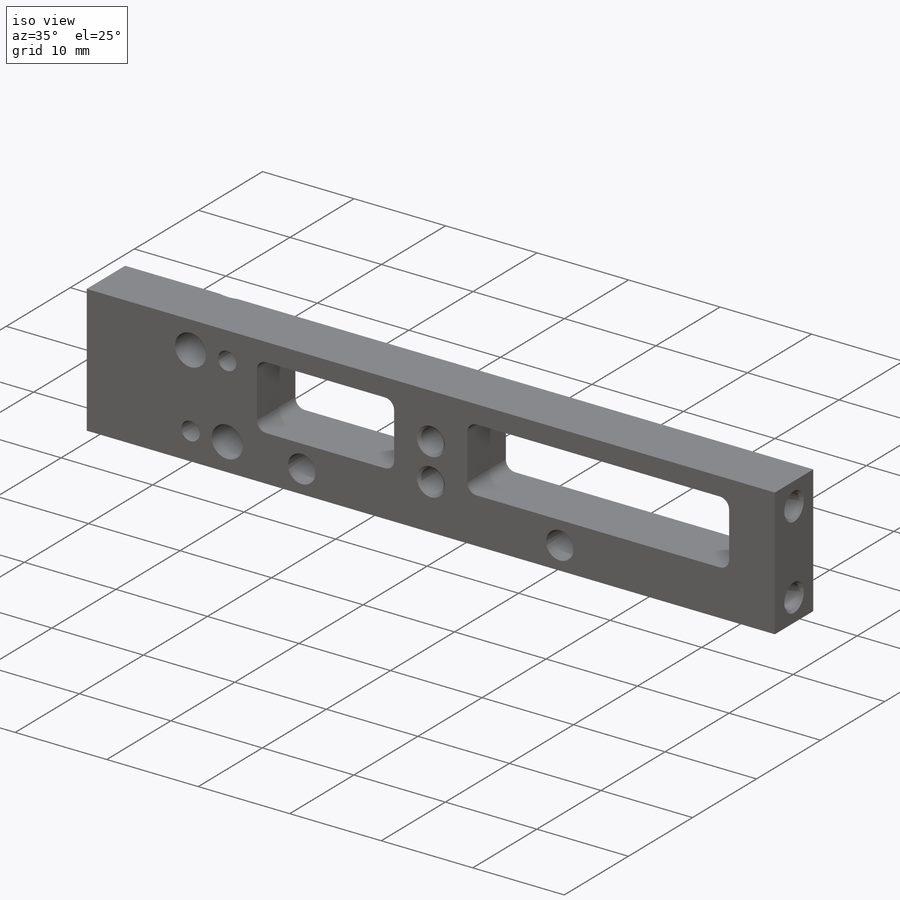
[diagram: iso view]
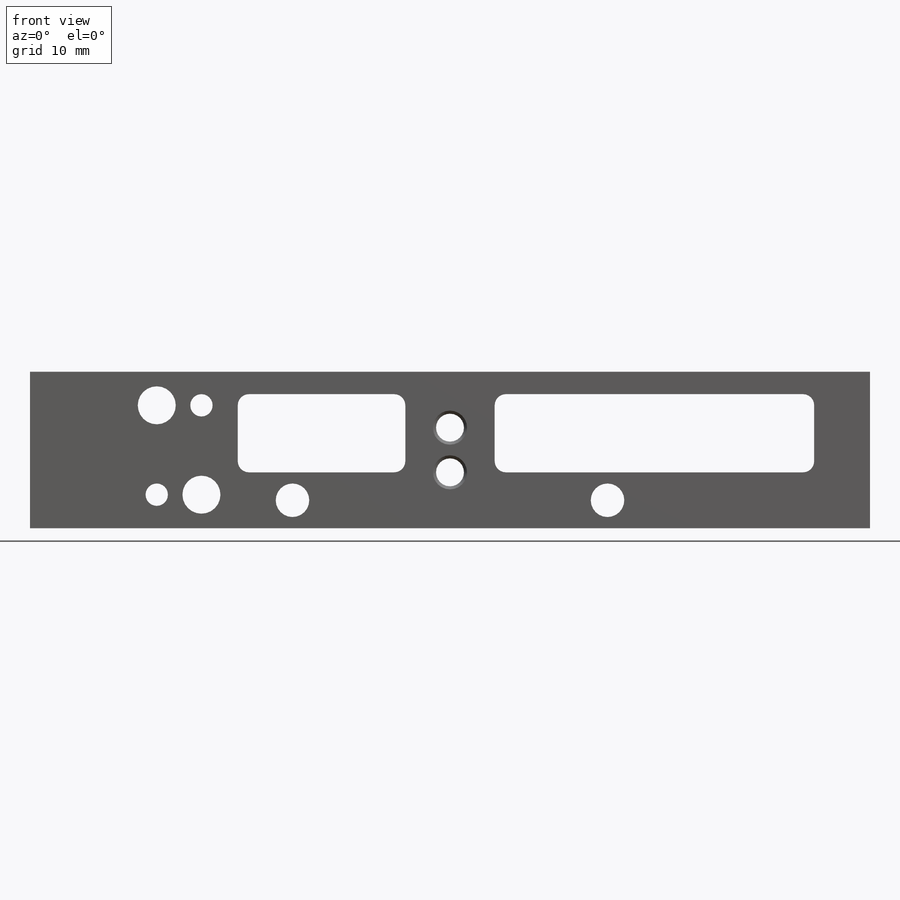
[diagram: front view]
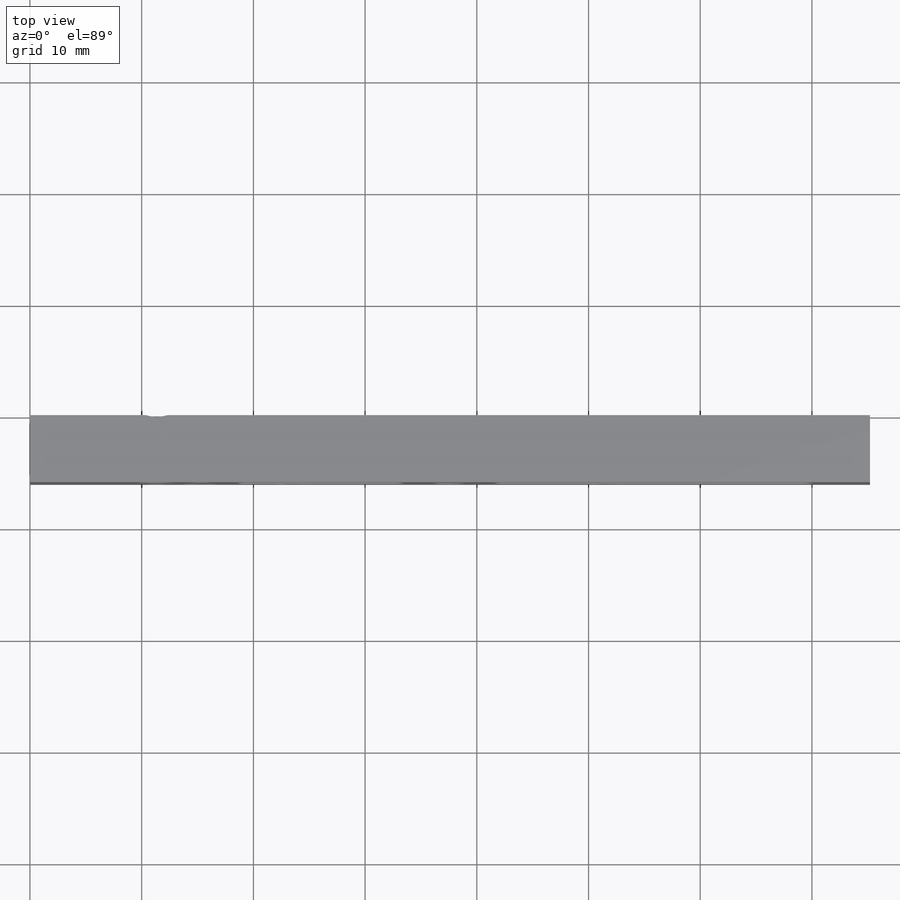
[diagram: top view]
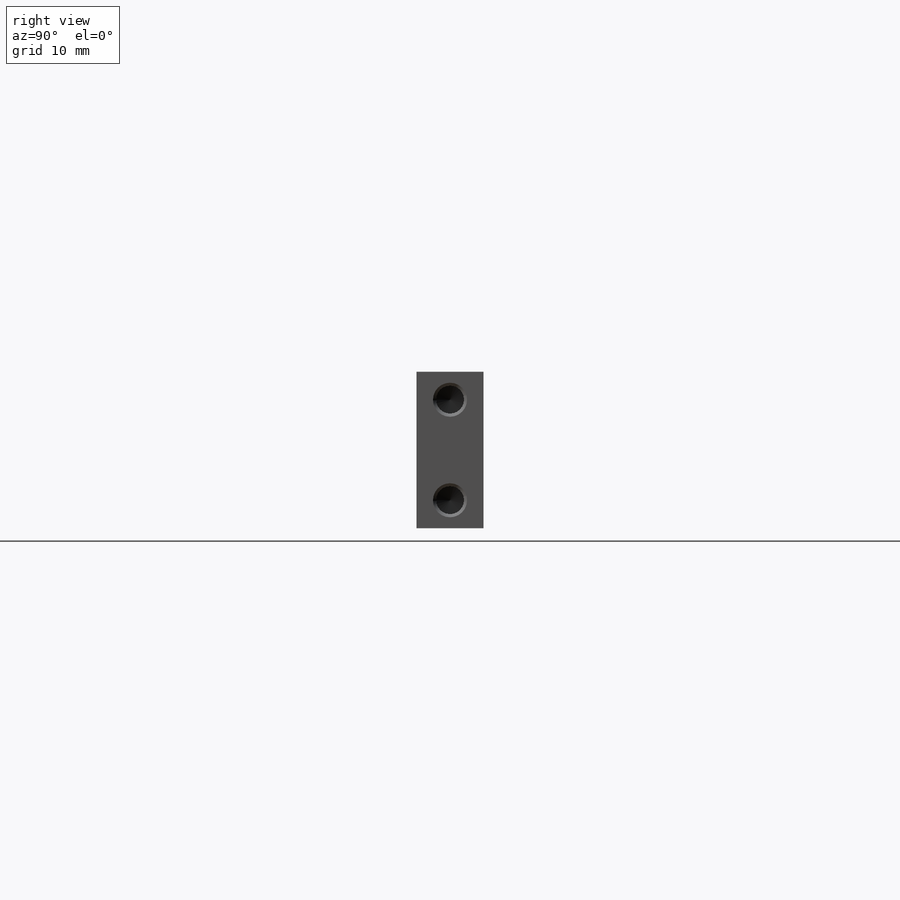
[diagram: right view]
SOLIDWORKS PART (.sldprt)
format: sldprt  version: not decoded by parser v0  size: 428,544 bytes
history: native  units: mm
features: sketch x12, hole x5, thread x4, material x1, extrude x1, cut_extrude x1, fillet x1, plane x1, mirror x1 (+11 scaffold rows collapsed)
feature tree (38):
  scaffold x11  (default folders/planes/origin — collapsed)
  material  "Material <not specified>"
  sketch  "Sketch1"  dims[D1=75.2mm D2=14.0mm]
  extrude  "Boss-Extrude1"  Depth=6mm
  sketch  "Sketch2"  dims[c1.D1=9.0mm c1.D2=5.0mm c1.D3=28.6mm c1.D4=7.0mm c1.D5=8.0mm c1.D6=15.0mm c1.D7=9.0mm c1.D8=7.0mm c2.D6=5.0mm c2.D3=28.6mm c2.D2=15.0mm]
  cut_extrude  "Cut-Extrude1"  [1 undecoded]
  fillet  "Fillet1"  Radius=1mm
  hole  "Ø3.0 (3) Diameter Hole1"  Diameter=3mm Depth=45mm
  sketch  "Sketch4"  dims[D1=23.5mm D2=11.5mm D3=23.5mm D4=11.5mm]
  sketch  "Sketch3"  dims[hole-wizard template sketch: 47 standard entries collapsed; hole parameters kept: c15.Hole Depth=45.0mm c15.D3=~14.816244mm c15.Drill Angle=118.0deg]
  hole  "CSK for M3 Flat Head Machine Screw1"  Diameter=3.4mm Depth=6mm
  sketch  "Sketch8"  dims[c1.D1=11.35mm c1.D2=3.0mm c1.D3=8.0mm c1.D4=4.0mm c2.D1=11.35mm c2.D4=15.35mm]
  sketch  "Sketch7"  dims[hole-wizard template sketch: 55 standard entries collapsed; hole parameters kept: c17.Thru Hole Depth=6.0mm c17.Near C'Sink Dia.=6.3mm c17.D4=~3.666174mm c17.Near C'Sink Angle=90.0deg]
  hole  "Ø2.0 (2) Diameter Hole1"  Diameter=2mm Depth=6mm
  sketch  "Sketch10"  dims[D1=4.0mm D2=4.0mm D3=3.0mm D4=8.0mm]
  sketch  "Sketch11"  dims[hole-wizard template sketch: 60 standard entries collapsed; hole parameters kept: c18.Thru Hole Depth=6.0mm]
  hole  "M3x0.5 Tapped Hole1"  Diameter=2.5mm Depth=3mm
  sketch  "Sketch13"  dims[D1=3.0mm D2=3.0mm D3=2.5mm D4=11.5mm]
  sketch  "Sketch12"  dims[hole-wizard template sketch: 40 standard entries collapsed; hole parameters kept: c13.Tap Drill Depth=3.0mm c13.Near C'Sink Dia.=3.05mm c13.D4=~33.297463mm c13.Near C'Sink Angle=90.0deg c14.D5=~14.816244mm c14.Drill Angle=118.0deg]
  thread  "Hole Thread1"  Diameter=3mm  [1 undecoded]
  thread  "Hole Thread2"  Diameter=3mm  [1 undecoded]
  plane  "Plane1"
  mirror  "Mirror1"
  hole  "M3x0.5 Tapped Hole2"  Diameter=2.5mm Depth=6mm
  sketch  "Sketch15"  dims[D1=37.6mm D2=9.0mm D3=4.0mm]
  sketch  "Sketch14"  dims[hole-wizard template sketch: 54 standard entries collapsed; hole parameters kept: c17.Thru Tap Drill Dia.=2.5mm c17.Thru Tap Drill Depth=6.0mm c17.Near C'Sink Dia.=3.05mm c17.D4=~3.666174mm c17.Near C'Sink Angle=90.0deg]
  thread  "Hole Thread3"  Diameter=3mm  [1 undecoded]
  thread  "Hole Thread4"  Diameter=3mm  [1 undecoded]
decode coverage: 23 of 25 modeling features carry decoded parameters
note: ~ marks probable driven/reference dimensions
note: 5 parameter values undecoded
summary: Diameter pulled from absorbed wizard sketch
note: suppression state not decoded; provenance and decode notes live in map.json
